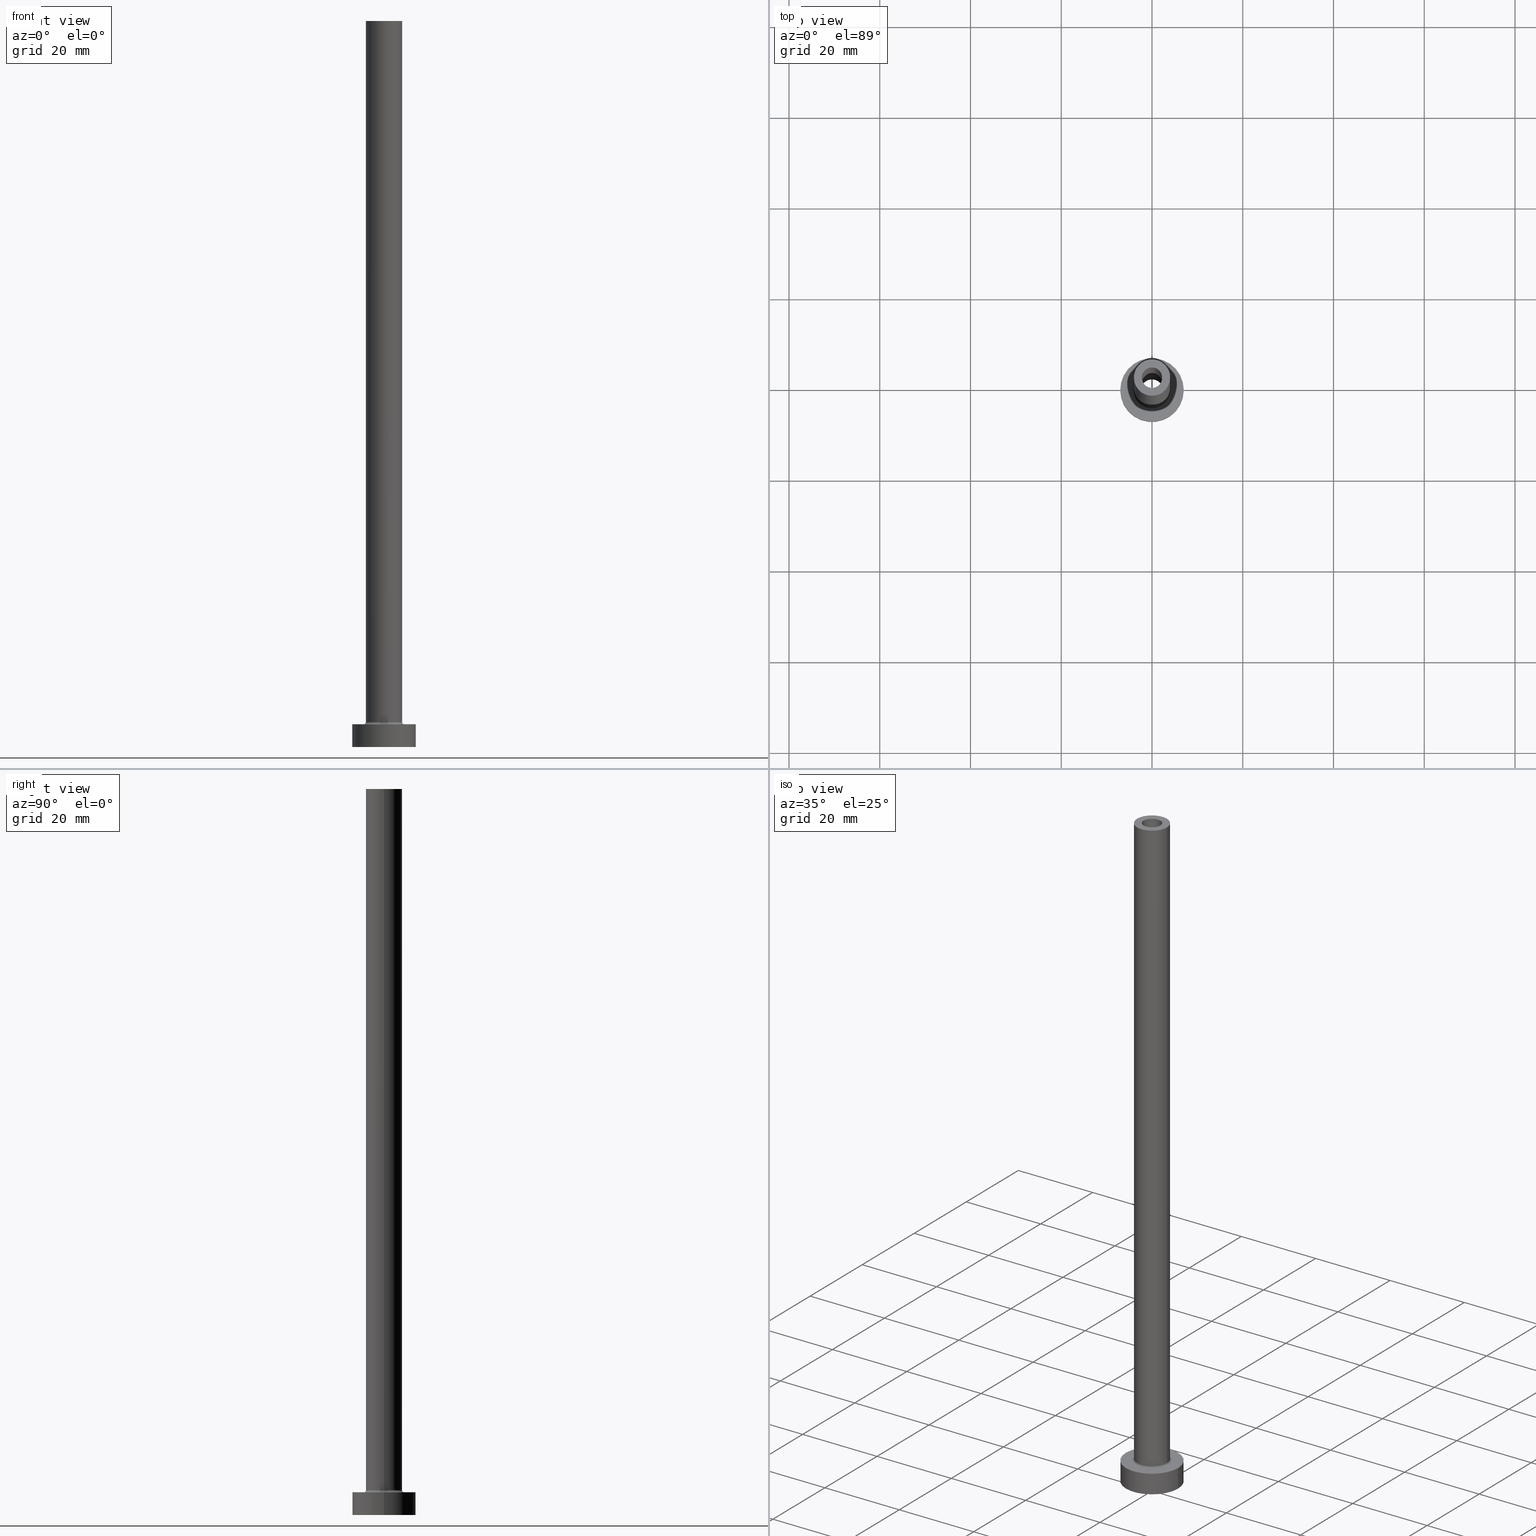
[diagram: canonical four-view strip — front | top / right | iso, engineering-drawing reading convention]
A machine part, canonical four-view strip (front | top / right | iso — engineering-drawing reading convention). The complete STEP part file that produces these views, byte-faithful:
ISO-10303-21;
HEADER;
FILE_DESCRIPTION (( 'STEP AP203' ),
    '1' );
FILE_NAME ('2b07.STEP',
    '2023-02-13T11:05:12',
    ( '' ),
    ( '' ),
    'SwSTEP 2.0',
    'SolidWorks 2019',
    '' );
FILE_SCHEMA (( 'CONFIG_CONTROL_DESIGN' ));
ENDSEC;

DATA;
#1 = ORIENTED_EDGE ( 'NONE', *, *, #115, .T. ) ;
#2 = CARTESIAN_POINT ( 'NONE',  ( 0.000000000000000000, 0.000000000000000000, 160.0000000000000000 ) ) ;
#3 = AXIS2_PLACEMENT_3D ( 'NONE', #200, #266, #408 ) ;
#4 = VECTOR ( 'NONE', #328, 1000.000000000000000 ) ;
#5 = ORIENTED_EDGE ( 'NONE', *, *, #70, .F. ) ;
#6 = CARTESIAN_POINT ( 'NONE',  ( 4.000000000000000000, 4.898587196589412829E-16, 160.0000000000000000 ) ) ;
#7 = EDGE_CURVE ( 'NONE', #429, #454, #140, .T. ) ;
#8 = DIRECTION ( 'NONE',  ( 0.000000000000000000, 0.000000000000000000, -1.000000000000000000 ) ) ;
#9 = VERTEX_POINT ( 'NONE', #287 ) ;
#10 = DIRECTION ( 'NONE',  ( 1.000000000000000000, 0.000000000000000000, 0.000000000000000000 ) ) ;
#11 = VECTOR ( 'NONE', #446, 1000.000000000000000 ) ;
#12 = ADVANCED_FACE ( 'NONE', ( #225 ), #223, .T. ) ;
#13 = DIRECTION ( 'NONE',  ( 1.224646799147353207E-16, 1.000000000000000000, -0.000000000000000000 ) ) ;
#14 = DIRECTION ( 'NONE',  ( -0.000000000000000000, -0.000000000000000000, -1.000000000000000000 ) ) ;
#15 = ORIENTED_EDGE ( 'NONE', *, *, #383, .T. ) ;
#16 = DIRECTION ( 'NONE',  ( 0.000000000000000000, 0.000000000000000000, 1.000000000000000000 ) ) ;
#17 = DIRECTION ( 'NONE',  ( 1.000000000000000000, 0.000000000000000000, 0.000000000000000000 ) ) ;
#18 = DIRECTION ( 'NONE',  ( 0.000000000000000000, 0.000000000000000000, 1.000000000000000000 ) ) ;
#19 = EDGE_CURVE ( 'NONE', #218, #267, #426, .T. ) ;
#20 = CYLINDRICAL_SURFACE ( 'NONE', #58, 4.000000000000000000 ) ;
#21 = AXIS2_PLACEMENT_3D ( 'NONE', #118, #45, #363 ) ;
#22 = AXIS2_PLACEMENT_3D ( 'NONE', #128, #437, #189 ) ;
#23 = DIRECTION ( 'NONE',  ( 0.000000000000000000, 0.000000000000000000, 1.000000000000000000 ) ) ;
#24 = APPROVAL_DATE_TIME ( #340, #415 ) ;
#25 = LINE ( 'NONE', #60, #409 ) ;
#26 = CIRCLE ( 'NONE', #169, 2.399999999999999911 ) ;
#27 = DIRECTION ( 'NONE',  ( 1.000000000000000000, 0.000000000000000000, 0.000000000000000000 ) ) ;
#28 = CC_DESIGN_DATE_AND_TIME_ASSIGNMENT ( #206, #315, ( #458 ) ) ;
#29 = CIRCLE ( 'NONE', #368, 4.000000000000000000 ) ;
#30 = DIRECTION ( 'NONE',  ( 0.000000000000000000, 0.000000000000000000, 1.000000000000000000 ) ) ;
#31 = ORIENTED_EDGE ( 'NONE', *, *, #431, .F. ) ;
#32 = CYLINDRICAL_SURFACE ( 'NONE', #417, 4.000000000000000000 ) ;
#33 = ORIENTED_EDGE ( 'NONE', *, *, #100, .F. ) ;
#34 = DIRECTION ( 'NONE',  ( 1.000000000000000000, 0.000000000000000000, -0.000000000000000000 ) ) ;
#35 = CARTESIAN_POINT ( 'NONE',  ( 0.000000000000000000, 0.000000000000000000, 115.0000000000000000 ) ) ;
#36 = CIRCLE ( 'NONE', #374, 0.5000000000000004441 ) ;
#37 = CARTESIAN_POINT ( 'NONE',  ( 0.000000000000000000, 0.000000000000000000, 121.7882250993908713 ) ) ;
#38 = FACE_BOUND ( 'NONE', #142, .T. ) ;
#39 = ORIENTED_EDGE ( 'NONE', *, *, #229, .T. ) ;
#40 = ADVANCED_FACE ( 'NONE', ( #72 ), #359, .F. ) ;
#41 = ORIENTED_EDGE ( 'NONE', *, *, #248, .T. ) ;
#42 = CARTESIAN_POINT ( 'NONE',  ( 7.000000000000000000, 8.572527594031473190E-16, 0.000000000000000000 ) ) ;
#43 = CIRCLE ( 'NONE', #331, 2.250000000000000000 ) ;
#44 = AXIS2_PLACEMENT_3D ( 'NONE', #448, #54, #280 ) ;
#45 = DIRECTION ( 'NONE',  ( -0.000000000000000000, -0.000000000000000000, -1.000000000000000000 ) ) ;
#46 = DIRECTION ( 'NONE',  ( 0.000000000000000000, 0.000000000000000000, 1.000000000000000000 ) ) ;
#47 = ORIENTED_EDGE ( 'NONE', *, *, #311, .T. ) ;
#48 = PRODUCT_DEFINITION ( 'NEZN�M�', '', #117, #246 ) ;
#49 = PERSON ( 'NEUR�EN�', 'NEUR�EN�', 'NEUR�EN�', ('NEUR�EN�'), ('NEUR�EN�'), ('NEUR�EN�') ) ;
#50 = CARTESIAN_POINT ( 'NONE',  ( 0.000000000000000000, 0.000000000000000000, 160.0000000000000000 ) ) ;
#51 = PERSON_AND_ORGANIZATION_ROLE ( 'classification_officer' ) ;
#52 = FACE_BOUND ( 'NONE', #204, .T. ) ;
#53 = LOCAL_TIME ( 12, 5, 12.00000000000000000, #174 ) ;
#54 = DIRECTION ( 'NONE',  ( 0.000000000000000000, 0.000000000000000000, -1.000000000000000000 ) ) ;
#55 = DATE_AND_TIME ( #57, #326 ) ;
#56 = CC_DESIGN_PERSON_AND_ORGANIZATION_ASSIGNMENT ( #418, #201, ( #48 ) ) ;
#57 = CALENDAR_DATE ( 2023, 13, 2 ) ;
#58 = AXIS2_PLACEMENT_3D ( 'NONE', #272, #14, #166 ) ;
#59 = COORDINATED_UNIVERSAL_TIME_OFFSET ( 1, 0, .AHEAD. ) ;
#60 = CARTESIAN_POINT ( 'NONE',  ( -4.000000000000000000, 0.000000000000000000, 160.0000000000000000 ) ) ;
#61 = ADVANCED_FACE ( 'NONE', ( #342 ), #177, .F. ) ;
#62 = ORIENTED_EDGE ( 'NONE', *, *, #447, .F. ) ;
#63 = CARTESIAN_POINT ( 'NONE',  ( -7.000000000000000000, 0.000000000000000000, 5.000000000000000000 ) ) ;
#64 = AXIS2_PLACEMENT_3D ( 'NONE', #50, #421, #341 ) ;
#65 = AXIS2_PLACEMENT_3D ( 'NONE', #152, #348, #322 ) ;
#66 = FACE_OUTER_BOUND ( 'NONE', #442, .T. ) ;
#67 = DIRECTION ( 'NONE',  ( 1.000000000000000000, 0.000000000000000000, 0.000000000000000000 ) ) ;
#68 = ORIENTED_EDGE ( 'NONE', *, *, #311, .F. ) ;
#69 = ORIENTED_EDGE ( 'NONE', *, *, #7, .T. ) ;
#70 = EDGE_CURVE ( 'NONE', #196, #291, #232, .T. ) ;
#71 = DIRECTION ( 'NONE',  ( 0.000000000000000000, 0.000000000000000000, 1.000000000000000000 ) ) ;
#72 = FACE_OUTER_BOUND ( 'NONE', #385, .T. ) ;
#73 = VERTEX_POINT ( 'NONE', #373 ) ;
#74 = CARTESIAN_POINT ( 'NONE',  ( 0.000000000000000000, 0.000000000000000000, 5.000000000000000000 ) ) ;
#75 = AXIS2_PLACEMENT_3D ( 'NONE', #155, #120, #364 ) ;
#76 = EDGE_LOOP ( 'NONE', ( #68, #109, #69, #103 ) ) ;
#77 = ORIENTED_EDGE ( 'NONE', *, *, #354, .F. ) ;
#78 = LINE ( 'NONE', #125, #312 ) ;
#79 = ADVANCED_FACE ( 'NONE', ( #233 ), #163, .F. ) ;
#80 = EDGE_LOOP ( 'NONE', ( #62, #112, #245, #256 ) ) ;
#81 = CARTESIAN_POINT ( 'NONE',  ( 7.000000000000000000, 8.572527594031473190E-16, 5.000000000000000000 ) ) ;
#82 = VERTEX_POINT ( 'NONE', #170 ) ;
#83 =( NAMED_UNIT ( * ) PLANE_ANGLE_UNIT ( ) SI_UNIT ( $, .RADIAN. ) );
#84 = AXIS2_PLACEMENT_3D ( 'NONE', #129, #371, #124 ) ;
#85 = CIRCLE ( 'NONE', #75, 4.000000000000000000 ) ;
#86 = FACE_OUTER_BOUND ( 'NONE', #285, .T. ) ;
#87 = ORIENTED_EDGE ( 'NONE', *, *, #203, .F. ) ;
#88 = MECHANICAL_CONTEXT ( 'NONE', #192, 'mechanical' ) ;
#89 = CARTESIAN_POINT ( 'NONE',  ( 0.000000000000000000, 0.000000000000000000, 121.7882250993908713 ) ) ;
#90 = ADVANCED_FACE ( 'NONE', ( #369, #441 ), #301, .T. ) ;
#91 = FACE_OUTER_BOUND ( 'NONE', #278, .T. ) ;
#92 = CALENDAR_DATE ( 2023, 13, 2 ) ;
#93 = CARTESIAN_POINT ( 'NONE',  ( 0.000000000000000000, 0.000000000000000000, 115.0000000000000000 ) ) ;
#94 = CIRCLE ( 'NONE', #261, 2.250000000000000000 ) ;
#95 = APPROVAL_ROLE ( '' ) ;
#96 = EDGE_CURVE ( 'NONE', #456, #253, #25, .T. ) ;
#97 = COORDINATED_UNIVERSAL_TIME_OFFSET ( 1, 0, .AHEAD. ) ;
#98 =( GEOMETRIC_REPRESENTATION_CONTEXT ( 3 ) GLOBAL_UNCERTAINTY_ASSIGNED_CONTEXT ( ( #388 ) ) GLOBAL_UNIT_ASSIGNED_CONTEXT ( ( #440, #83, #230 ) ) REPRESENTATION_CONTEXT ( 'NONE', 'WORKASPACE' ) );
#99 = ORIENTED_EDGE ( 'NONE', *, *, #214, .F. ) ;
#100 = EDGE_CURVE ( 'NONE', #291, #121, #43, .T. ) ;
#101 = APPROVAL_PERSON_ORGANIZATION ( #136, #415, #95 ) ;
#102 = DIRECTION ( 'NONE',  ( 1.000000000000000000, 0.000000000000000000, 0.000000000000000000 ) ) ;
#103 = ORIENTED_EDGE ( 'NONE', *, *, #383, .F. ) ;
#104 = PLANE ( 'NONE',  #391 ) ;
#105 = CARTESIAN_POINT ( 'NONE',  ( 0.000000000000000000, 0.000000000000000000, 115.0000000000000000 ) ) ;
#106 = CIRCLE ( 'NONE', #350, 2.250000000000000000 ) ;
#107 = DIRECTION ( 'NONE',  ( 1.000000000000000000, 0.000000000000000000, 0.000000000000000000 ) ) ;
#108 = CC_DESIGN_PERSON_AND_ORGANIZATION_ASSIGNMENT ( #435, #262, ( #332 ) ) ;
#109 = ORIENTED_EDGE ( 'NONE', *, *, #453, .T. ) ;
#110 = MANIFOLD_SOLID_BREP ( 'Odebrat vysunut�m4', #346 ) ;
#111 = DIRECTION ( 'NONE',  ( 1.000000000000000000, 0.000000000000000000, 0.000000000000000000 ) ) ;
#112 = ORIENTED_EDGE ( 'NONE', *, *, #248, .F. ) ;
#113 = ORIENTED_EDGE ( 'NONE', *, *, #431, .T. ) ;
#114 = CARTESIAN_POINT ( 'NONE',  ( 0.000000000000000000, 0.000000000000000000, 5.500000000000005329 ) ) ;
#115 = EDGE_CURVE ( 'NONE', #325, #218, #269, .T. ) ;
#116 = DIRECTION ( 'NONE',  ( 0.000000000000000000, 0.000000000000000000, 1.000000000000000000 ) ) ;
#117 = PRODUCT_DEFINITION_FORMATION_WITH_SPECIFIED_SOURCE ( 'LIBOVOLN�', '', #332, .NOT_KNOWN. ) ;
#118 = CARTESIAN_POINT ( 'NONE',  ( 0.000000000000000000, 0.000000000000000000, 5.000000000000000000 ) ) ;
#119 = ORIENTED_EDGE ( 'NONE', *, *, #277, .F. ) ;
#120 = DIRECTION ( 'NONE',  ( 0.000000000000000000, 0.000000000000000000, 1.000000000000000000 ) ) ;
#121 = VERTEX_POINT ( 'NONE', #274 ) ;
#122 = ORIENTED_EDGE ( 'NONE', *, *, #100, .T. ) ;
#123 = PLANE ( 'NONE',  #22 ) ;
#124 = DIRECTION ( 'NONE',  ( 1.000000000000000000, 0.000000000000000000, -0.000000000000000000 ) ) ;
#125 = CARTESIAN_POINT ( 'NONE',  ( 7.000000000000000000, 8.572527594031473190E-16, 5.000000000000000000 ) ) ;
#126 = AXIS2_PLACEMENT_3D ( 'NONE', #455, #23, #443 ) ;
#127 = DIRECTION ( 'NONE',  ( -0.000000000000000000, -0.000000000000000000, -1.000000000000000000 ) ) ;
#128 = CARTESIAN_POINT ( 'NONE',  ( 0.000000000000000000, 0.000000000000000000, 160.0000000000000000 ) ) ;
#129 = CARTESIAN_POINT ( 'NONE',  ( 0.000000000000000000, 0.000000000000000000, 5.000000000000000000 ) ) ;
#130 = APPROVAL_STATUS ( 'not_yet_approved' ) ;
#131 = DIRECTION ( 'NONE',  ( 0.000000000000000000, 0.000000000000000000, -1.000000000000000000 ) ) ;
#132 = APPROVAL_STATUS ( 'not_yet_approved' ) ;
#133 = ADVANCED_FACE ( 'NONE', ( #52, #416 ), #316, .F. ) ;
#134 = AXIS2_PLACEMENT_3D ( 'NONE', #89, #413, #306 ) ;
#135 = AXIS2_PLACEMENT_3D ( 'NONE', #74, #286, #183 ) ;
#136 = PERSON_AND_ORGANIZATION ( #49, #411 ) ;
#137 = PERSON_AND_ORGANIZATION ( #49, #411 ) ;
#138 = ORIENTED_EDGE ( 'NONE', *, *, #398, .F. ) ;
#139 = DIRECTION ( 'NONE',  ( 0.000000000000000000, 0.000000000000000000, 1.000000000000000000 ) ) ;
#140 = CIRCLE ( 'NONE', #213, 7.000000000000000000 ) ;
#141 = LOCAL_TIME ( 12, 5, 12.00000000000000000, #97 ) ;
#142 = EDGE_LOOP ( 'NONE', ( #407, #433 ) ) ;
#143 = DIRECTION ( 'NONE',  ( -0.000000000000000000, -0.000000000000000000, -1.000000000000000000 ) ) ;
#144 = LINE ( 'NONE', #425, #436 ) ;
#145 = ORIENTED_EDGE ( 'NONE', *, *, #270, .T. ) ;
#146 = DIRECTION ( 'NONE',  ( 1.000000000000000000, 0.000000000000000000, 0.000000000000000000 ) ) ;
#147 = DIRECTION ( 'NONE',  ( 0.000000000000000000, -1.000000000000000000, 0.000000000000000000 ) ) ;
#148 = AXIS2_PLACEMENT_3D ( 'NONE', #93, #139, #377 ) ;
#149 = TOROIDAL_SURFACE ( 'NONE', #208, 4.500000000000000888, 0.5000000000000000000 ) ;
#150 = DIRECTION ( 'NONE',  ( 0.000000000000000000, 0.000000000000000000, 1.000000000000000000 ) ) ;
#151 = ORIENTED_EDGE ( 'NONE', *, *, #19, .F. ) ;
#152 = CARTESIAN_POINT ( 'NONE',  ( 0.000000000000000000, 0.000000000000000000, 5.000000000000000000 ) ) ;
#153 = ORIENTED_EDGE ( 'NONE', *, *, #296, .F. ) ;
#154 = EDGE_CURVE ( 'NONE', #434, #267, #207, .T. ) ;
#155 = CARTESIAN_POINT ( 'NONE',  ( 0.000000000000000000, 0.000000000000000000, 5.500000000000005329 ) ) ;
#156 = APPLICATION_PROTOCOL_DEFINITION ( 'international standard', 'config_control_design', 1994, #162 ) ;
#157 = CIRCLE ( 'NONE', #65, 7.000000000000000000 ) ;
#158 = LOCAL_TIME ( 12, 5, 12.00000000000000000, #375 ) ;
#159 = VERTEX_POINT ( 'NONE', #304 ) ;
#160 = ORIENTED_EDGE ( 'NONE', *, *, #424, .F. ) ;
#161 = CARTESIAN_POINT ( 'NONE',  ( -4.000000000000000000, 0.000000000000000000, 160.0000000000000000 ) ) ;
#162 = APPLICATION_CONTEXT ( 'configuration controlled 3d designs of mechanical parts and assemblies' ) ;
#163 = CYLINDRICAL_SURFACE ( 'NONE', #64, 2.250000000000000000 ) ;
#164 = DIRECTION ( 'NONE',  ( -1.000000000000000000, 1.224646799147351482E-16, 0.000000000000000000 ) ) ;
#165 = ADVANCED_FACE ( 'NONE', ( #91 ), #324, .F. ) ;
#166 = DIRECTION ( 'NONE',  ( -1.000000000000000000, 0.000000000000000000, 0.000000000000000000 ) ) ;
#167 = ADVANCED_BREP_SHAPE_REPRESENTATION ( '2b07', ( #110, #276 ), #98 ) ;
#168 = DIRECTION ( 'NONE',  ( 0.000000000000000000, 0.000000000000000000, -1.000000000000000000 ) ) ;
#169 = AXIS2_PLACEMENT_3D ( 'NONE', #35, #178, #318 ) ;
#170 = CARTESIAN_POINT ( 'NONE',  ( 2.399999999999999911, 2.939152317953647106E-16, 0.000000000000000000 ) ) ;
#171 = FACE_OUTER_BOUND ( 'NONE', #298, .T. ) ;
#172 = ADVANCED_FACE ( 'NONE', ( #86 ), #20, .T. ) ;
#173 = PERSON_AND_ORGANIZATION_ROLE ( 'design_supplier' ) ;
#174 = COORDINATED_UNIVERSAL_TIME_OFFSET ( 1, 0, .AHEAD. ) ;
#175 = AXIS2_PLACEMENT_3D ( 'NONE', #257, #284, #146 ) ;
#176 = ORIENTED_EDGE ( 'NONE', *, *, #460, .F. ) ;
#177 = CYLINDRICAL_SURFACE ( 'NONE', #134, 2.399999999999999911 ) ;
#178 = DIRECTION ( 'NONE',  ( 0.000000000000000000, 0.000000000000000000, 1.000000000000000000 ) ) ;
#179 = CIRCLE ( 'NONE', #360, 2.399999999999999911 ) ;
#180 = FACE_OUTER_BOUND ( 'NONE', #80, .T. ) ;
#181 = EDGE_LOOP ( 'NONE', ( #335, #327, #15, #353 ) ) ;
#182 = EDGE_CURVE ( 'NONE', #325, #456, #400, .T. ) ;
#183 = DIRECTION ( 'NONE',  ( 1.000000000000000000, 0.000000000000000000, 0.000000000000000000 ) ) ;
#184 = ORIENTED_EDGE ( 'NONE', *, *, #203, .T. ) ;
#185 = DIRECTION ( 'NONE',  ( 1.000000000000000000, 0.000000000000000000, 0.000000000000000000 ) ) ;
#186 = CIRCLE ( 'NONE', #135, 4.500000000000000888 ) ;
#187 = CARTESIAN_POINT ( 'NONE',  ( 4.500000000000000888, 0.000000000000000000, 5.000000000000002665 ) ) ;
#188 = APPROVAL ( #130, 'NEUR�EN�' ) ;
#189 = DIRECTION ( 'NONE',  ( 1.000000000000000000, 0.000000000000000000, -0.000000000000000000 ) ) ;
#190 = ORIENTED_EDGE ( 'NONE', *, *, #362, .T. ) ;
#191 = CARTESIAN_POINT ( 'NONE',  ( -4.500000000000000888, 5.510910596163089556E-16, 5.500000000000005329 ) ) ;
#192 = APPLICATION_CONTEXT ( 'configuration controlled 3d designs of mechanical parts and assemblies' ) ;
#193 = ORIENTED_EDGE ( 'NONE', *, *, #296, .T. ) ;
#194 = DIRECTION ( 'NONE',  ( 1.000000000000000000, 0.000000000000000000, 0.000000000000000000 ) ) ;
#195 = AXIS2_PLACEMENT_3D ( 'NONE', #2, #254, #394 ) ;
#196 = VERTEX_POINT ( 'NONE', #412 ) ;
#197 = ADVANCED_FACE ( 'NONE', ( #171 ), #308, .F. ) ;
#198 = CARTESIAN_POINT ( 'NONE',  ( 0.000000000000000000, 0.000000000000000000, 5.000000000000000000 ) ) ;
#199 = DIRECTION ( 'NONE',  ( 0.000000000000000000, 0.000000000000000000, 1.000000000000000000 ) ) ;
#200 = CARTESIAN_POINT ( 'NONE',  ( 0.000000000000000000, 0.000000000000000000, 5.000000000000000000 ) ) ;
#201 = PERSON_AND_ORGANIZATION_ROLE ( 'creator' ) ;
#202 = CIRCLE ( 'NONE', #319, 2.399999999999999911 ) ;
#203 = EDGE_CURVE ( 'NONE', #9, #82, #202, .T. ) ;
#204 = EDGE_LOOP ( 'NONE', ( #378, #122 ) ) ;
#205 = CARTESIAN_POINT ( 'NONE',  ( 4.000000000000000000, 4.898587196589412829E-16, 160.0000000000000000 ) ) ;
#206 = DATE_AND_TIME ( #273, #53 ) ;
#207 = CIRCLE ( 'NONE', #3, 4.500000000000000888 ) ;
#208 = AXIS2_PLACEMENT_3D ( 'NONE', #422, #217, #111 ) ;
#209 = CALENDAR_DATE ( 2023, 13, 2 ) ;
#210 = ADVANCED_FACE ( 'NONE', ( #289, #212 ), #104, .F. ) ;
#211 = CARTESIAN_POINT ( 'NONE',  ( 0.000000000000000000, 0.000000000000000000, 5.500000000000005329 ) ) ;
#212 = FACE_OUTER_BOUND ( 'NONE', #382, .T. ) ;
#213 = AXIS2_PLACEMENT_3D ( 'NONE', #228, #367, #402 ) ;
#214 = EDGE_CURVE ( 'NONE', #73, #260, #179, .T. ) ;
#215 = VECTOR ( 'NONE', #405, 1000.000000000000000 ) ;
#216 = EDGE_LOOP ( 'NONE', ( #221, #349, #302, #153 ) ) ;
#217 = DIRECTION ( 'NONE',  ( 0.000000000000000000, 0.000000000000000000, 1.000000000000000000 ) ) ;
#218 = VERTEX_POINT ( 'NONE', #219 ) ;
#219 = CARTESIAN_POINT ( 'NONE',  ( 4.000000000000000000, 4.898587196589412829E-16, 5.500000000000005329 ) ) ;
#220 = ORIENTED_EDGE ( 'NONE', *, *, #235, .T. ) ;
#221 = ORIENTED_EDGE ( 'NONE', *, *, #214, .T. ) ;
#222 = DIRECTION ( 'NONE',  ( 0.000000000000000000, 0.000000000000000000, -1.000000000000000000 ) ) ;
#223 = CYLINDRICAL_SURFACE ( 'NONE', #21, 7.000000000000000000 ) ;
#224 = AXIS2_PLACEMENT_3D ( 'NONE', #37, #131, #339 ) ;
#225 = FACE_OUTER_BOUND ( 'NONE', #181, .T. ) ;
#226 = ORIENTED_EDGE ( 'NONE', *, *, #154, .T. ) ;
#227 = CARTESIAN_POINT ( 'NONE',  ( 2.399999999999999911, 2.939152317953647106E-16, 121.7882250993908713 ) ) ;
#228 = CARTESIAN_POINT ( 'NONE',  ( 0.000000000000000000, 0.000000000000000000, 0.000000000000000000 ) ) ;
#229 = EDGE_CURVE ( 'NONE', #365, #196, #427, .T. ) ;
#230 =( NAMED_UNIT ( * ) SI_UNIT ( $, .STERADIAN. ) SOLID_ANGLE_UNIT ( ) );
#231 = AXIS2_PLACEMENT_3D ( 'NONE', #198, #297, #303 ) ;
#232 = LINE ( 'NONE', #236, #11 ) ;
#233 = FACE_OUTER_BOUND ( 'NONE', #265, .T. ) ;
#234 = PERSON_AND_ORGANIZATION ( #49, #411 ) ;
#235 = EDGE_CURVE ( 'NONE', #260, #73, #26, .T. ) ;
#236 = CARTESIAN_POINT ( 'NONE',  ( 2.250000000000000000, 2.755455298081543792E-16, 160.0000000000000000 ) ) ;
#237 = PERSON_AND_ORGANIZATION ( #49, #411 ) ;
#238 = CIRCLE ( 'NONE', #450, 7.000000000000000000 ) ;
#239 = CARTESIAN_POINT ( 'NONE',  ( 0.000000000000000000, 0.000000000000000000, 115.0000000000000000 ) ) ;
#240 = CC_DESIGN_PERSON_AND_ORGANIZATION_ASSIGNMENT ( #344, #51, ( #458 ) ) ;
#241 = DATE_AND_TIME ( #209, #259 ) ;
#242 = APPROVAL_PERSON_ORGANIZATION ( #234, #188, #381 ) ;
#243 = EDGE_LOOP ( 'NONE', ( #99, #351 ) ) ;
#244 = CARTESIAN_POINT ( 'NONE',  ( 0.000000000000000000, 0.000000000000000000, 0.000000000000000000 ) ) ;
#245 = ORIENTED_EDGE ( 'NONE', *, *, #19, .T. ) ;
#246 = DESIGN_CONTEXT ( 'detailed design', #162, 'design' ) ;
#247 = DIRECTION ( 'NONE',  ( -1.000000000000000000, 0.000000000000000000, 0.000000000000000000 ) ) ;
#248 = EDGE_CURVE ( 'NONE', #218, #253, #29, .T. ) ;
#249 = ORIENTED_EDGE ( 'NONE', *, *, #323, .F. ) ;
#250 = CARTESIAN_POINT ( 'NONE',  ( 0.000000000000000000, 0.000000000000000000, 0.000000000000000000 ) ) ;
#251 = AXIS2_PLACEMENT_3D ( 'NONE', #404, #16, #194 ) ;
#252 = DIRECTION ( 'NONE',  ( 1.000000000000000000, 0.000000000000000000, 0.000000000000000000 ) ) ;
#253 = VERTEX_POINT ( 'NONE', #423 ) ;
#254 = DIRECTION ( 'NONE',  ( 0.000000000000000000, 0.000000000000000000, 1.000000000000000000 ) ) ;
#255 = ORIENTED_EDGE ( 'NONE', *, *, #182, .F. ) ;
#256 = ORIENTED_EDGE ( 'NONE', *, *, #154, .F. ) ;
#257 = CARTESIAN_POINT ( 'NONE',  ( 0.000000000000000000, 0.000000000000000000, 160.0000000000000000 ) ) ;
#258 = ORIENTED_EDGE ( 'NONE', *, *, #317, .T. ) ;
#259 = LOCAL_TIME ( 12, 5, 12.00000000000000000, #451 ) ;
#260 = VERTEX_POINT ( 'NONE', #399 ) ;
#261 = AXIS2_PLACEMENT_3D ( 'NONE', #430, #321, #461 ) ;
#262 = PERSON_AND_ORGANIZATION_ROLE ( 'design_owner' ) ;
#263 = CARTESIAN_POINT ( 'NONE',  ( -4.500000000000000888, 5.510910596163088569E-16, 5.000000000000002665 ) ) ;
#264 = CC_DESIGN_PERSON_AND_ORGANIZATION_ASSIGNMENT ( #237, #275, ( #117 ) ) ;
#265 = EDGE_LOOP ( 'NONE', ( #5, #145, #258, #33 ) ) ;
#266 = DIRECTION ( 'NONE',  ( -0.000000000000000000, -0.000000000000000000, -1.000000000000000000 ) ) ;
#267 = VERTEX_POINT ( 'NONE', #187 ) ;
#268 = APPROVAL_PERSON_ORGANIZATION ( #137, #347, #414 ) ;
#269 = LINE ( 'NONE', #205, #390 ) ;
#270 = EDGE_CURVE ( 'NONE', #196, #365, #94, .T. ) ;
#271 = FACE_OUTER_BOUND ( 'NONE', #439, .T. ) ;
#272 = CARTESIAN_POINT ( 'NONE',  ( 0.000000000000000000, 0.000000000000000000, 160.0000000000000000 ) ) ;
#273 = CALENDAR_DATE ( 2023, 13, 2 ) ;
#274 = CARTESIAN_POINT ( 'NONE',  ( -2.250000000000000000, 0.000000000000000000, 115.0000000000000000 ) ) ;
#275 = PERSON_AND_ORGANIZATION_ROLE ( 'creator' ) ;
#276 = AXIS2_PLACEMENT_3D ( 'NONE', #338, #18, #10 ) ;
#277 = EDGE_CURVE ( 'NONE', #267, #434, #186, .T. ) ;
#278 = EDGE_LOOP ( 'NONE', ( #31, #387, #119, #151 ) ) ;
#279 = APPROVAL_DATE_TIME ( #55, #188 ) ;
#280 = DIRECTION ( 'NONE',  ( -1.000000000000000000, 0.000000000000000000, 0.000000000000000000 ) ) ;
#281 = VECTOR ( 'NONE', #168, 1000.000000000000000 ) ;
#282 = ADVANCED_FACE ( 'NONE', ( #180 ), #149, .F. ) ;
#283 = DIRECTION ( 'NONE',  ( 0.000000000000000000, 0.000000000000000000, 1.000000000000000000 ) ) ;
#284 = DIRECTION ( 'NONE',  ( 0.000000000000000000, 0.000000000000000000, 1.000000000000000000 ) ) ;
#285 = EDGE_LOOP ( 'NONE', ( #255, #1, #41, #380 ) ) ;
#286 = DIRECTION ( 'NONE',  ( -0.000000000000000000, -0.000000000000000000, -1.000000000000000000 ) ) ;
#287 = CARTESIAN_POINT ( 'NONE',  ( -2.399999999999999911, 0.000000000000000000, 0.000000000000000000 ) ) ;
#288 = CIRCLE ( 'NONE', #251, 7.000000000000000000 ) ;
#289 = FACE_BOUND ( 'NONE', #330, .T. ) ;
#290 = ORIENTED_EDGE ( 'NONE', *, *, #277, .T. ) ;
#291 = VERTEX_POINT ( 'NONE', #459 ) ;
#292 = CARTESIAN_POINT ( 'NONE',  ( 0.000000000000000000, 0.000000000000000000, 160.0000000000000000 ) ) ;
#293 = DIRECTION ( 'NONE',  ( 1.000000000000000000, 0.000000000000000000, 0.000000000000000000 ) ) ;
#294 = CIRCLE ( 'NONE', #175, 4.000000000000000000 ) ;
#295 = CC_DESIGN_APPROVAL ( #415, ( #458 ) ) ;
#296 = EDGE_CURVE ( 'NONE', #73, #9, #144, .T. ) ;
#297 = DIRECTION ( 'NONE',  ( -0.000000000000000000, -0.000000000000000000, -1.000000000000000000 ) ) ;
#298 = EDGE_LOOP ( 'NONE', ( #39, #299, #176, #356 ) ) ;
#299 = ORIENTED_EDGE ( 'NONE', *, *, #70, .T. ) ;
#300 = CARTESIAN_POINT ( 'NONE',  ( 0.000000000000000000, 0.000000000000000000, 115.0000000000000000 ) ) ;
#301 = PLANE ( 'NONE',  #84 ) ;
#302 = ORIENTED_EDGE ( 'NONE', *, *, #323, .T. ) ;
#303 = DIRECTION ( 'NONE',  ( -1.000000000000000000, 0.000000000000000000, 0.000000000000000000 ) ) ;
#304 = CARTESIAN_POINT ( 'NONE',  ( -7.000000000000000000, 0.000000000000000000, 5.000000000000000000 ) ) ;
#305 = DIRECTION ( 'NONE',  ( -0.000000000000000000, -0.000000000000000000, -1.000000000000000000 ) ) ;
#306 = DIRECTION ( 'NONE',  ( -1.000000000000000000, 0.000000000000000000, 0.000000000000000000 ) ) ;
#307 = APPROVAL_STATUS ( 'not_yet_approved' ) ;
#308 = CYLINDRICAL_SURFACE ( 'NONE', #44, 2.250000000000000000 ) ;
#309 = SECURITY_CLASSIFICATION_LEVEL ( 'unclassified' ) ;
#310 = ORIENTED_EDGE ( 'NONE', *, *, #115, .F. ) ;
#311 = EDGE_CURVE ( 'NONE', #438, #159, #238, .T. ) ;
#312 = VECTOR ( 'NONE', #305, 1000.000000000000000 ) ;
#313 = DATE_TIME_ROLE ( 'creation_date' ) ;
#314 = ORIENTED_EDGE ( 'NONE', *, *, #182, .T. ) ;
#315 = DATE_TIME_ROLE ( 'classification_date' ) ;
#316 = PLANE ( 'NONE',  #148 ) ;
#317 = EDGE_CURVE ( 'NONE', #365, #121, #320, .T. ) ;
#318 = DIRECTION ( 'NONE',  ( 1.000000000000000000, 0.000000000000000000, 0.000000000000000000 ) ) ;
#319 = AXIS2_PLACEMENT_3D ( 'NONE', #244, #384, #107 ) ;
#320 = LINE ( 'NONE', #352, #4 ) ;
#321 = DIRECTION ( 'NONE',  ( 0.000000000000000000, 0.000000000000000000, 1.000000000000000000 ) ) ;
#322 = DIRECTION ( 'NONE',  ( 1.000000000000000000, 0.000000000000000000, 0.000000000000000000 ) ) ;
#323 = EDGE_CURVE ( 'NONE', #82, #9, #403, .T. ) ;
#324 = TOROIDAL_SURFACE ( 'NONE', #419, 4.500000000000000888, 0.5000000000000000000 ) ;
#325 = VERTEX_POINT ( 'NONE', #6 ) ;
#326 = LOCAL_TIME ( 12, 5, 12.00000000000000000, #59 ) ;
#327 = ORIENTED_EDGE ( 'NONE', *, *, #362, .F. ) ;
#328 = DIRECTION ( 'NONE',  ( 0.000000000000000000, 0.000000000000000000, -1.000000000000000000 ) ) ;
#329 = PRODUCT_RELATED_PRODUCT_CATEGORY ( 'detail', '', ( #332 ) ) ;
#330 = EDGE_LOOP ( 'NONE', ( #87, #249 ) ) ;
#331 = AXIS2_PLACEMENT_3D ( 'NONE', #239, #46, #102 ) ;
#332 = PRODUCT ( '2b07', '2b07', '', ( #88 ) ) ;
#333 = CYLINDRICAL_SURFACE ( 'NONE', #231, 7.000000000000000000 ) ;
#334 = ORIENTED_EDGE ( 'NONE', *, *, #96, .T. ) ;
#335 = ORIENTED_EDGE ( 'NONE', *, *, #453, .F. ) ;
#336 = FACE_OUTER_BOUND ( 'NONE', #76, .T. ) ;
#337 = DIRECTION ( 'NONE',  ( -0.000000000000000000, -0.000000000000000000, -1.000000000000000000 ) ) ;
#338 = CARTESIAN_POINT ( 'NONE',  ( 0.000000000000000000, 0.000000000000000000, 0.000000000000000000 ) ) ;
#339 = DIRECTION ( 'NONE',  ( -1.000000000000000000, 0.000000000000000000, 0.000000000000000000 ) ) ;
#340 = DATE_AND_TIME ( #372, #158 ) ;
#341 = DIRECTION ( 'NONE',  ( -1.000000000000000000, 0.000000000000000000, 0.000000000000000000 ) ) ;
#342 = FACE_OUTER_BOUND ( 'NONE', #216, .T. ) ;
#343 = CC_DESIGN_DATE_AND_TIME_ASSIGNMENT ( #452, #313, ( #48 ) ) ;
#344 = PERSON_AND_ORGANIZATION ( #49, #411 ) ;
#345 = SHAPE_DEFINITION_REPRESENTATION ( #401, #167 ) ;
#346 = CLOSED_SHELL ( 'NONE', ( #197, #61, #165, #172, #392, #12, #90, #210, #376, #410, #282, #40, #133, #79 ) ) ;
#347 = APPROVAL ( #307, 'NEUR�EN�' ) ;
#348 = DIRECTION ( 'NONE',  ( 0.000000000000000000, 0.000000000000000000, 1.000000000000000000 ) ) ;
#349 = ORIENTED_EDGE ( 'NONE', *, *, #424, .T. ) ;
#350 = AXIS2_PLACEMENT_3D ( 'NONE', #300, #116, #293 ) ;
#351 = ORIENTED_EDGE ( 'NONE', *, *, #235, .F. ) ;
#352 = CARTESIAN_POINT ( 'NONE',  ( -2.250000000000000000, 0.000000000000000000, 160.0000000000000000 ) ) ;
#353 = ORIENTED_EDGE ( 'NONE', *, *, #398, .T. ) ;
#354 = EDGE_CURVE ( 'NONE', #456, #325, #294, .T. ) ;
#355 = CARTESIAN_POINT ( 'NONE',  ( 0.000000000000000000, 0.000000000000000000, 0.000000000000000000 ) ) ;
#356 = ORIENTED_EDGE ( 'NONE', *, *, #317, .F. ) ;
#357 = DIRECTION ( 'NONE',  ( -0.000000000000000000, -0.000000000000000000, -1.000000000000000000 ) ) ;
#358 = AXIS2_PLACEMENT_3D ( 'NONE', #396, #147, #8 ) ;
#359 = CYLINDRICAL_SURFACE ( 'NONE', #224, 2.399999999999999911 ) ;
#360 = AXIS2_PLACEMENT_3D ( 'NONE', #105, #30, #27 ) ;
#361 = LINE ( 'NONE', #227, #281 ) ;
#362 = EDGE_CURVE ( 'NONE', #159, #438, #157, .T. ) ;
#363 = DIRECTION ( 'NONE',  ( -1.000000000000000000, 0.000000000000000000, 0.000000000000000000 ) ) ;
#364 = DIRECTION ( 'NONE',  ( 1.000000000000000000, 0.000000000000000000, 0.000000000000000000 ) ) ;
#365 = VERTEX_POINT ( 'NONE', #389 ) ;
#366 = CARTESIAN_POINT ( 'NONE',  ( -7.000000000000000000, 0.000000000000000000, 0.000000000000000000 ) ) ;
#367 = DIRECTION ( 'NONE',  ( 0.000000000000000000, 0.000000000000000000, 1.000000000000000000 ) ) ;
#368 = AXIS2_PLACEMENT_3D ( 'NONE', #114, #150, #67 ) ;
#369 = FACE_BOUND ( 'NONE', #406, .T. ) ;
#370 = CC_DESIGN_PERSON_AND_ORGANIZATION_ASSIGNMENT ( #449, #173, ( #117 ) ) ;
#371 = DIRECTION ( 'NONE',  ( 0.000000000000000000, 0.000000000000000000, 1.000000000000000000 ) ) ;
#372 = CALENDAR_DATE ( 2023, 13, 2 ) ;
#373 = CARTESIAN_POINT ( 'NONE',  ( -2.399999999999999911, 0.000000000000000000, 115.0000000000000000 ) ) ;
#374 = AXIS2_PLACEMENT_3D ( 'NONE', #191, #13, #164 ) ;
#375 = COORDINATED_UNIVERSAL_TIME_OFFSET ( 1, 0, .AHEAD. ) ;
#376 = ADVANCED_FACE ( 'NONE', ( #66 ), #32, .T. ) ;
#377 = DIRECTION ( 'NONE',  ( 1.000000000000000000, 0.000000000000000000, -0.000000000000000000 ) ) ;
#378 = ORIENTED_EDGE ( 'NONE', *, *, #460, .T. ) ;
#379 = APPROVAL_DATE_TIME ( #241, #347 ) ;
#380 = ORIENTED_EDGE ( 'NONE', *, *, #96, .F. ) ;
#381 = APPROVAL_ROLE ( '' ) ;
#382 = EDGE_LOOP ( 'NONE', ( #138, #432 ) ) ;
#383 = EDGE_CURVE ( 'NONE', #159, #454, #386, .T. ) ;
#384 = DIRECTION ( 'NONE',  ( -0.000000000000000000, -0.000000000000000000, -1.000000000000000000 ) ) ;
#385 = EDGE_LOOP ( 'NONE', ( #160, #220, #193, #184 ) ) ;
#386 = LINE ( 'NONE', #63, #215 ) ;
#387 = ORIENTED_EDGE ( 'NONE', *, *, #447, .T. ) ;
#388 = UNCERTAINTY_MEASURE_WITH_UNIT (LENGTH_MEASURE( 1.000000000000000082E-05 ), #440, 'distance_accuracy_value', 'NONE');
#389 = CARTESIAN_POINT ( 'NONE',  ( -2.250000000000000000, 0.000000000000000000, 160.0000000000000000 ) ) ;
#390 = VECTOR ( 'NONE', #127, 1000.000000000000000 ) ;
#391 = AXIS2_PLACEMENT_3D ( 'NONE', #355, #283, #34 ) ;
#392 = ADVANCED_FACE ( 'NONE', ( #336 ), #333, .T. ) ;
#393 = EDGE_LOOP ( 'NONE', ( #190, #47 ) ) ;
#394 = DIRECTION ( 'NONE',  ( 1.000000000000000000, 0.000000000000000000, 0.000000000000000000 ) ) ;
#395 = CARTESIAN_POINT ( 'NONE',  ( 0.000000000000000000, 0.000000000000000000, 5.000000000000000000 ) ) ;
#396 = CARTESIAN_POINT ( 'NONE',  ( 4.500000000000000888, 0.000000000000000000, 5.500000000000005329 ) ) ;
#397 = ORIENTED_EDGE ( 'NONE', *, *, #354, .T. ) ;
#398 = EDGE_CURVE ( 'NONE', #454, #429, #288, .T. ) ;
#399 = CARTESIAN_POINT ( 'NONE',  ( 2.399999999999999911, 2.939152317953647106E-16, 115.0000000000000000 ) ) ;
#400 = CIRCLE ( 'NONE', #126, 4.000000000000000000 ) ;
#401 = PRODUCT_DEFINITION_SHAPE ( 'NONE', 'NONE',  #48 ) ;
#402 = DIRECTION ( 'NONE',  ( 1.000000000000000000, 0.000000000000000000, 0.000000000000000000 ) ) ;
#403 = CIRCLE ( 'NONE', #420, 2.399999999999999911 ) ;
#404 = CARTESIAN_POINT ( 'NONE',  ( 0.000000000000000000, 0.000000000000000000, 0.000000000000000000 ) ) ;
#405 = DIRECTION ( 'NONE',  ( -0.000000000000000000, -0.000000000000000000, -1.000000000000000000 ) ) ;
#406 = EDGE_LOOP ( 'NONE', ( #290, #226 ) ) ;
#407 = ORIENTED_EDGE ( 'NONE', *, *, #229, .F. ) ;
#408 = DIRECTION ( 'NONE',  ( 1.000000000000000000, 0.000000000000000000, 0.000000000000000000 ) ) ;
#409 = VECTOR ( 'NONE', #337, 1000.000000000000000 ) ;
#410 = ADVANCED_FACE ( 'NONE', ( #38, #271 ), #123, .T. ) ;
#411 = ORGANIZATION ( 'NEUR�EN�', 'NEUR�EN�', '' ) ;
#412 = CARTESIAN_POINT ( 'NONE',  ( 2.250000000000000000, 2.755455298081543792E-16, 160.0000000000000000 ) ) ;
#413 = DIRECTION ( 'NONE',  ( 0.000000000000000000, 0.000000000000000000, -1.000000000000000000 ) ) ;
#414 = APPROVAL_ROLE ( '' ) ;
#415 = APPROVAL ( #132, 'NEUR�EN�' ) ;
#416 = FACE_OUTER_BOUND ( 'NONE', #243, .T. ) ;
#417 = AXIS2_PLACEMENT_3D ( 'NONE', #292, #143, #247 ) ;
#418 = PERSON_AND_ORGANIZATION ( #49, #411 ) ;
#419 = AXIS2_PLACEMENT_3D ( 'NONE', #211, #199, #17 ) ;
#420 = AXIS2_PLACEMENT_3D ( 'NONE', #250, #357, #185 ) ;
#421 = DIRECTION ( 'NONE',  ( 0.000000000000000000, 0.000000000000000000, -1.000000000000000000 ) ) ;
#422 = CARTESIAN_POINT ( 'NONE',  ( 0.000000000000000000, 0.000000000000000000, 5.500000000000005329 ) ) ;
#423 = CARTESIAN_POINT ( 'NONE',  ( -4.000000000000000000, 0.000000000000000000, 5.500000000000005329 ) ) ;
#424 = EDGE_CURVE ( 'NONE', #260, #82, #361, .T. ) ;
#425 = CARTESIAN_POINT ( 'NONE',  ( -2.399999999999999911, 0.000000000000000000, 121.7882250993908713 ) ) ;
#426 = CIRCLE ( 'NONE', #358, 0.5000000000000004441 ) ;
#427 = CIRCLE ( 'NONE', #195, 2.250000000000000000 ) ;
#428 = CC_DESIGN_SECURITY_CLASSIFICATION ( #458, ( #117 ) ) ;
#429 = VERTEX_POINT ( 'NONE', #42 ) ;
#430 = CARTESIAN_POINT ( 'NONE',  ( 0.000000000000000000, 0.000000000000000000, 160.0000000000000000 ) ) ;
#431 = EDGE_CURVE ( 'NONE', #253, #218, #85, .T. ) ;
#432 = ORIENTED_EDGE ( 'NONE', *, *, #7, .F. ) ;
#433 = ORIENTED_EDGE ( 'NONE', *, *, #270, .F. ) ;
#434 = VERTEX_POINT ( 'NONE', #263 ) ;
#435 = PERSON_AND_ORGANIZATION ( #49, #411 ) ;
#436 = VECTOR ( 'NONE', #222, 1000.000000000000000 ) ;
#437 = DIRECTION ( 'NONE',  ( 0.000000000000000000, 0.000000000000000000, 1.000000000000000000 ) ) ;
#438 = VERTEX_POINT ( 'NONE', #81 ) ;
#439 = EDGE_LOOP ( 'NONE', ( #397, #314 ) ) ;
#440 =( LENGTH_UNIT ( ) NAMED_UNIT ( * ) SI_UNIT ( .MILLI., .METRE. ) );
#441 = FACE_OUTER_BOUND ( 'NONE', #393, .T. ) ;
#442 = EDGE_LOOP ( 'NONE', ( #310, #77, #334, #113 ) ) ;
#443 = DIRECTION ( 'NONE',  ( 1.000000000000000000, 0.000000000000000000, 0.000000000000000000 ) ) ;
#444 = CC_DESIGN_APPROVAL ( #347, ( #48 ) ) ;
#445 = APPLICATION_PROTOCOL_DEFINITION ( 'international standard', 'config_control_design', 1994, #192 ) ;
#446 = DIRECTION ( 'NONE',  ( 0.000000000000000000, 0.000000000000000000, -1.000000000000000000 ) ) ;
#447 = EDGE_CURVE ( 'NONE', #253, #434, #36, .T. ) ;
#448 = CARTESIAN_POINT ( 'NONE',  ( 0.000000000000000000, 0.000000000000000000, 160.0000000000000000 ) ) ;
#449 = PERSON_AND_ORGANIZATION ( #49, #411 ) ;
#450 = AXIS2_PLACEMENT_3D ( 'NONE', #395, #71, #252 ) ;
#451 = COORDINATED_UNIVERSAL_TIME_OFFSET ( 1, 0, .AHEAD. ) ;
#452 = DATE_AND_TIME ( #92, #141 ) ;
#453 = EDGE_CURVE ( 'NONE', #438, #429, #78, .T. ) ;
#454 = VERTEX_POINT ( 'NONE', #366 ) ;
#455 = CARTESIAN_POINT ( 'NONE',  ( 0.000000000000000000, 0.000000000000000000, 160.0000000000000000 ) ) ;
#456 = VERTEX_POINT ( 'NONE', #161 ) ;
#457 = CC_DESIGN_APPROVAL ( #188, ( #117 ) ) ;
#458 = SECURITY_CLASSIFICATION ( '', '', #309 ) ;
#459 = CARTESIAN_POINT ( 'NONE',  ( 2.250000000000000000, 2.755455298081543792E-16, 115.0000000000000000 ) ) ;
#460 = EDGE_CURVE ( 'NONE', #121, #291, #106, .T. ) ;
#461 = DIRECTION ( 'NONE',  ( 1.000000000000000000, 0.000000000000000000, 0.000000000000000000 ) ) ;
ENDSEC;
END-ISO-10303-21;
